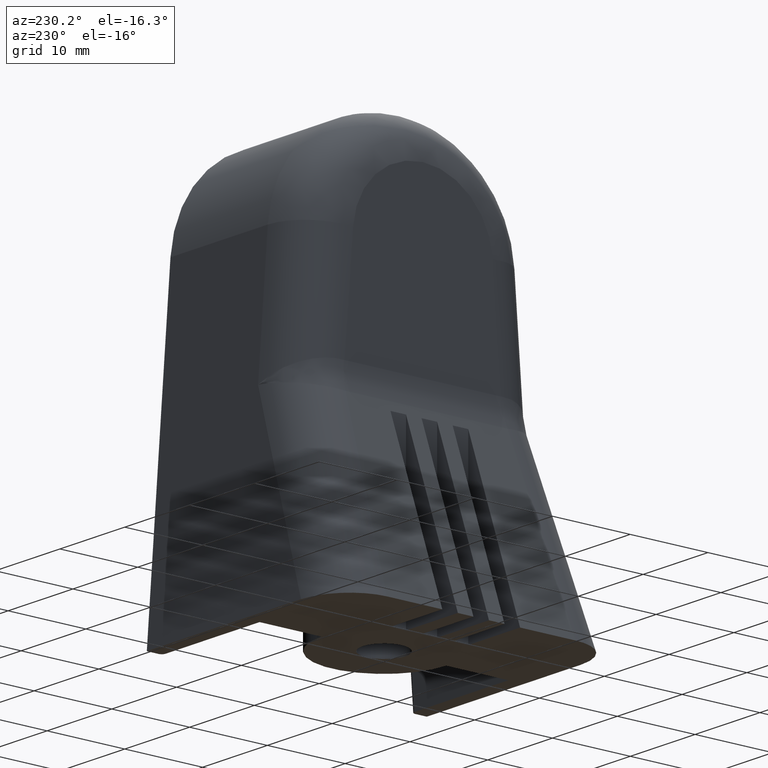
[diagram: clean part render]
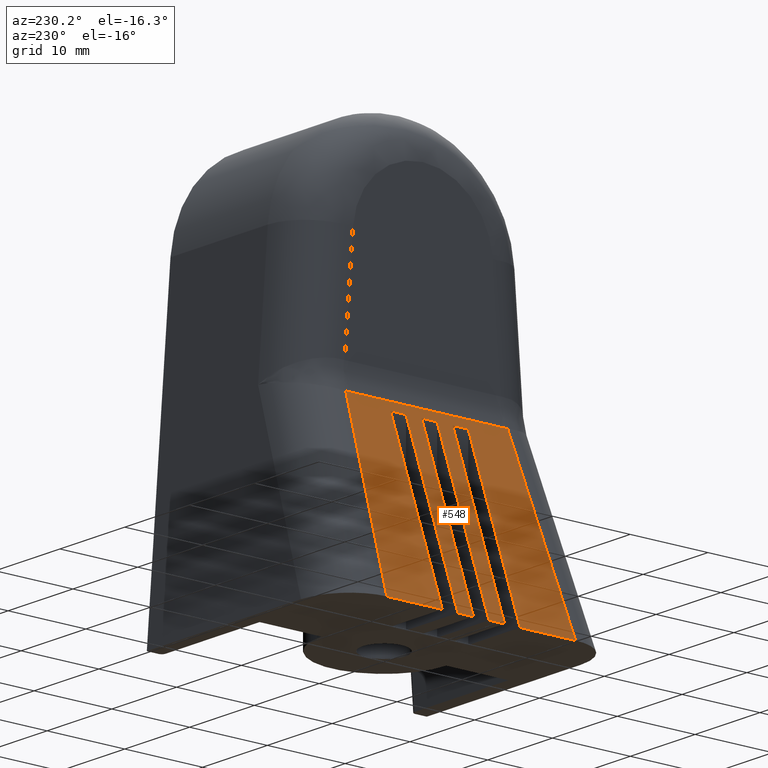
[diagram: same view with one face highlighted and labeled with its STEP entity id]
A machine part, auxiliary view. The second image highlights one B-rep face of the part: STEP entity #548.
In plain terms, the highlighted planar face has unit normal (0.9409, -0, -0.3387).
Its self-contained STEP definition (entity closure, byte-faithful):
#330=CARTESIAN_POINT('',(-14.999999999999996,12.133946663825908,-7.429899E-016));
#331=VERTEX_POINT('',#330);
#339=CARTESIAN_POINT('',(-6.586129657812687,10.405005355083409,23.371862061631418));
#340=VERTEX_POINT('',#339);
#341=CARTESIAN_POINT('',(-14.999999999999996,12.133946663825908,-7.429899E-016));
#342=DIRECTION('',(0.337901973678419,-0.069434476268191,0.938616593551164));
#343=VECTOR('',#342,24.900329082406554);
#344=LINE('',#341,#343);
#345=EDGE_CURVE('',#331,#340,#344,.T.);
#404=CARTESIAN_POINT('',(-6.000000000000003,-39.600009918212891,24.999999999999989));
#405=DIRECTION('',(0.940887411868727,-7.835332E-017,-0.338719468272742));
#406=DIRECTION('',(-0.338719468272742,-3.687215E-017,-0.940887411868727));
#407=AXIS2_PLACEMENT_3D('',#404,#405,#406);
#408=PLANE('',#407);
#409=CARTESIAN_POINT('',(-14.999999999999996,5.000000000000001,-3.061617E-016));
#410=VERTEX_POINT('',#409);
#411=CARTESIAN_POINT('',(-14.999999999999995,5.0,-3.061617E-016));
#412=DIRECTION('',(0.0,1.0,0.0));
#413=VECTOR('',#412,7.133946663825906);
#414=LINE('',#411,#413);
#415=EDGE_CURVE('',#410,#331,#414,.T.);
#416=ORIENTED_EDGE('',*,*,#415,.F.);
#417=CARTESIAN_POINT('',(-6.999999999999996,5.000000000000002,22.222222222222214));
#418=VERTEX_POINT('',#417);
#419=CARTESIAN_POINT('',(-14.999999999999996,5.000000000000001,-3.061617E-016));
#420=DIRECTION('',(0.338719468272742,3.760542E-017,0.940887411868727));
#421=VECTOR('',#420,23.618364898820300);
#422=LINE('',#419,#421);
#423=EDGE_CURVE('',#410,#418,#422,.T.);
#424=ORIENTED_EDGE('',*,*,#423,.T.);
#425=CARTESIAN_POINT('',(-6.999999999999996,3.000000000000002,22.222222222222214));
#426=VERTEX_POINT('',#425);
#427=CARTESIAN_POINT('',(-6.999999999999996,3.000000000000002,22.222222222222214));
#428=DIRECTION('',(0.0,1.0,0.0));
#429=VECTOR('',#428,2.0);
#430=LINE('',#427,#429);
#431=EDGE_CURVE('',#426,#418,#430,.T.);
#432=ORIENTED_EDGE('',*,*,#431,.F.);
#433=CARTESIAN_POINT('',(-14.999999999999996,3.000000000000001,-1.836970E-016));
#434=VERTEX_POINT('',#433);
#435=CARTESIAN_POINT('',(-14.999999999999996,3.000000000000001,-1.836970E-016));
#436=DIRECTION('',(0.338719468272742,3.760542E-017,0.940887411868727));
#437=VECTOR('',#436,23.618364898820300);
#438=LINE('',#435,#437);
#439=EDGE_CURVE('',#434,#426,#438,.T.);
#440=ORIENTED_EDGE('',*,*,#439,.F.);
#441=CARTESIAN_POINT('',(-14.999999999999996,1.000000000000001,-6.123234E-017));
#442=VERTEX_POINT('',#441);
#443=CARTESIAN_POINT('',(-14.999999999999996,1.0,-6.123234E-017));
#444=DIRECTION('',(0.0,1.0,0.0));
#445=VECTOR('',#444,2.0);
#446=LINE('',#443,#445);
#447=EDGE_CURVE('',#442,#434,#446,.T.);
#448=ORIENTED_EDGE('',*,*,#447,.F.);
#449=CARTESIAN_POINT('',(-6.999999999999996,1.000000000000003,22.222222222222214));
#450=VERTEX_POINT('',#449);
#451=CARTESIAN_POINT('',(-14.999999999999996,1.000000000000001,-6.123234E-017));
#452=DIRECTION('',(0.338719468272742,7.521083E-017,0.940887411868727));
#453=VECTOR('',#452,23.618364898820300);
#454=LINE('',#451,#453);
#455=EDGE_CURVE('',#442,#450,#454,.T.);
#456=ORIENTED_EDGE('',*,*,#455,.T.);
#457=CARTESIAN_POINT('',(-6.999999999999996,-0.999999999999998,22.222222222222214));
#458=VERTEX_POINT('',#457);
#459=CARTESIAN_POINT('',(-6.999999999999996,-0.999999999999998,22.222222222222214));
#460=DIRECTION('',(0.0,1.0,0.0));
#461=VECTOR('',#460,2.000000000000000);
#462=LINE('',#459,#461);
#463=EDGE_CURVE('',#458,#450,#462,.T.);
#464=ORIENTED_EDGE('',*,*,#463,.F.);
#465=CARTESIAN_POINT('',(-14.999999999999996,-0.999999999999999,6.123234E-017));
#466=VERTEX_POINT('',#465);
#467=CARTESIAN_POINT('',(-14.999999999999996,-0.999999999999999,6.123234E-017));
#468=DIRECTION('',(0.338719468272742,5.640812E-017,0.940887411868727));
#469=VECTOR('',#468,23.618364898820300);
#470=LINE('',#467,#469);
#471=EDGE_CURVE('',#466,#458,#470,.T.);
#472=ORIENTED_EDGE('',*,*,#471,.F.);
#473=CARTESIAN_POINT('',(-14.999999999999996,-2.999999999999996,1.836970E-016));
#474=VERTEX_POINT('',#473);
#475=CARTESIAN_POINT('',(-14.999999999999996,-2.999999999999996,1.836970E-016));
#476=DIRECTION('',(0.0,1.0,0.0));
#477=VECTOR('',#476,1.999999999999996);
#478=LINE('',#475,#477);
#479=EDGE_CURVE('',#474,#466,#478,.T.);
#480=ORIENTED_EDGE('',*,*,#479,.F.);
#481=CARTESIAN_POINT('',(-6.999999999999996,-2.999999999999996,22.222222222222214));
#482=VERTEX_POINT('',#481);
#483=CARTESIAN_POINT('',(-14.999999999999996,-2.999999999999996,1.836970E-016));
#484=DIRECTION('',(0.338719468272742,-3.760542E-017,0.940887411868727));
#485=VECTOR('',#484,23.618364898820300);
#486=LINE('',#483,#485);
#487=EDGE_CURVE('',#474,#482,#486,.T.);
#488=ORIENTED_EDGE('',*,*,#487,.T.);
#489=CARTESIAN_POINT('',(-6.999999999999996,-4.999999999999996,22.222222222222214));
#490=VERTEX_POINT('',#489);
#491=CARTESIAN_POINT('',(-6.999999999999996,-4.999999999999996,22.222222222222214));
#492=DIRECTION('',(0.0,1.0,0.0));
#493=VECTOR('',#492,2.000000000000000);
#494=LINE('',#491,#493);
#495=EDGE_CURVE('',#490,#482,#494,.T.);
#496=ORIENTED_EDGE('',*,*,#495,.F.);
#497=CARTESIAN_POINT('',(-14.999999999999996,-4.999999999999996,3.061617E-016));
#498=VERTEX_POINT('',#497);
#499=CARTESIAN_POINT('',(-14.999999999999996,-4.999999999999996,3.061617E-016));
#500=DIRECTION('',(0.338719468272742,-7.521083E-017,0.940887411868727));
#501=VECTOR('',#500,23.618364898820300);
#502=LINE('',#499,#501);
#503=EDGE_CURVE('',#498,#490,#502,.T.);
#504=ORIENTED_EDGE('',*,*,#503,.F.);
#505=CARTESIAN_POINT('',(-14.999999999999996,-12.133946663825897,7.429899E-016));
#506=VERTEX_POINT('',#505);
#507=CARTESIAN_POINT('',(-14.999999999999996,-12.133946663825899,7.429899E-016));
#508=DIRECTION('',(0.0,1.0,0.0));
#509=VECTOR('',#508,7.133946663825903);
#510=LINE('',#507,#509);
#511=EDGE_CURVE('',#506,#498,#510,.T.);
#512=ORIENTED_EDGE('',*,*,#511,.F.);
#513=CARTESIAN_POINT('',(-6.586129657812694,-10.405005355083398,23.371862061631390));
#514=VERTEX_POINT('',#513);
#515=CARTESIAN_POINT('',(-14.999999999999996,-12.133946663825897,7.429899E-016));
#516=DIRECTION('',(0.337901973678419,0.069434476268191,0.938616593551164));
#517=VECTOR('',#516,24.900329082406525);
#518=LINE('',#515,#517);
#519=EDGE_CURVE('',#506,#514,#518,.T.);
#520=ORIENTED_EDGE('',*,*,#519,.T.);
#521=CARTESIAN_POINT('',(-6.591125881312732,-10.005121839980950,23.357983663020178));
#522=VERTEX_POINT('',#521);
#523=CARTESIAN_POINT('',(-6.591125881312732,-10.005121839980953,23.357983663020164));
#524=CARTESIAN_POINT('',(-6.591125881312732,-10.138772476456293,23.357983663020164));
#525=CARTESIAN_POINT('',(-6.589460300119607,-10.272080856714062,23.362610277445512));
#526=CARTESIAN_POINT('',(-6.586129657812694,-10.405005355083398,23.371862061631390));
#527=B_SPLINE_CURVE_WITH_KNOTS('',3,(#523,#524,#525,#526),.UNSPECIFIED.,.F.,.U.,(4,4),(-0.425247996235703,-0.025001792127502),.UNSPECIFIED.);
#528=EDGE_CURVE('',#522,#514,#527,.T.);
#529=ORIENTED_EDGE('',*,*,#528,.F.);
#530=CARTESIAN_POINT('',(-6.591125881312730,10.005121839980950,23.357983663020178));
#531=VERTEX_POINT('',#530);
#532=CARTESIAN_POINT('',(-6.591125881312732,-10.005121839980950,23.357983663020178));
#533=DIRECTION('',(0.0,1.0,0.0));
#534=VECTOR('',#533,20.010243679961899);
#535=LINE('',#532,#534);
#536=EDGE_CURVE('',#522,#531,#535,.T.);
#537=ORIENTED_EDGE('',*,*,#536,.T.);
#538=CARTESIAN_POINT('',(-6.591125881312727,10.005121839980950,23.357983663020178));
#539=CARTESIAN_POINT('',(-6.591125881312727,10.138772476456294,23.357983663020178));
#540=CARTESIAN_POINT('',(-6.589460300119600,10.272080856714068,23.362610277445540));
#541=CARTESIAN_POINT('',(-6.586129657812687,10.405005355083409,23.371862061631418));
#542=B_SPLINE_CURVE_WITH_KNOTS('',3,(#538,#539,#540,#541),.UNSPECIFIED.,.F.,.U.,(4,4),(-0.425247996235703,-0.025001792127488),.UNSPECIFIED.);
#543=EDGE_CURVE('',#531,#340,#542,.T.);
#544=ORIENTED_EDGE('',*,*,#543,.T.);
#545=ORIENTED_EDGE('',*,*,#345,.F.);
#546=EDGE_LOOP('',(#416,#424,#432,#440,#448,#456,#464,#472,#480,#488,#496,#504,#512,#520,#529,#537,#544,#545));
#547=FACE_OUTER_BOUND('',#546,.T.);
#548=ADVANCED_FACE('',(#547),#408,.F.);